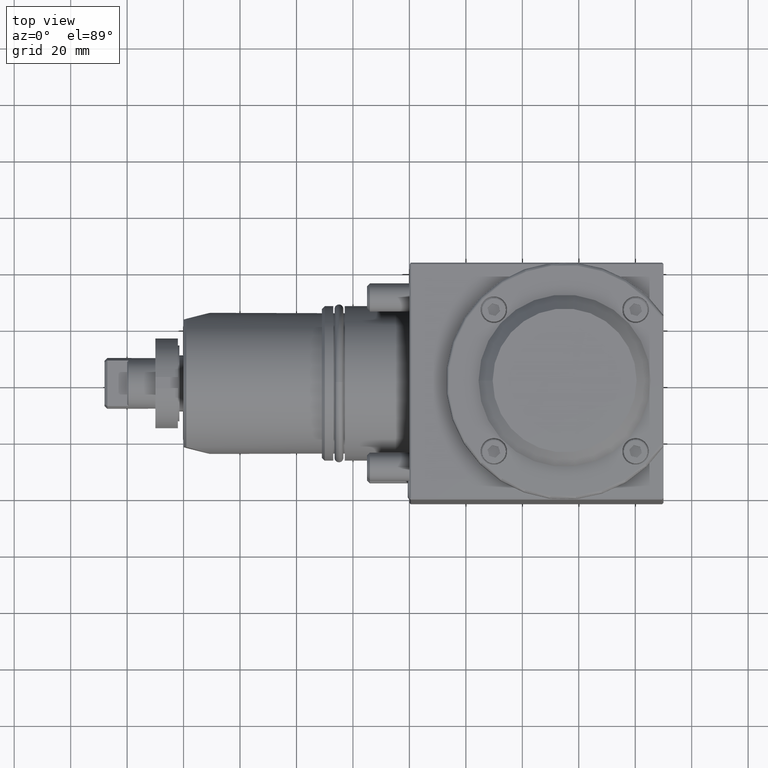
[diagram: clean part render]
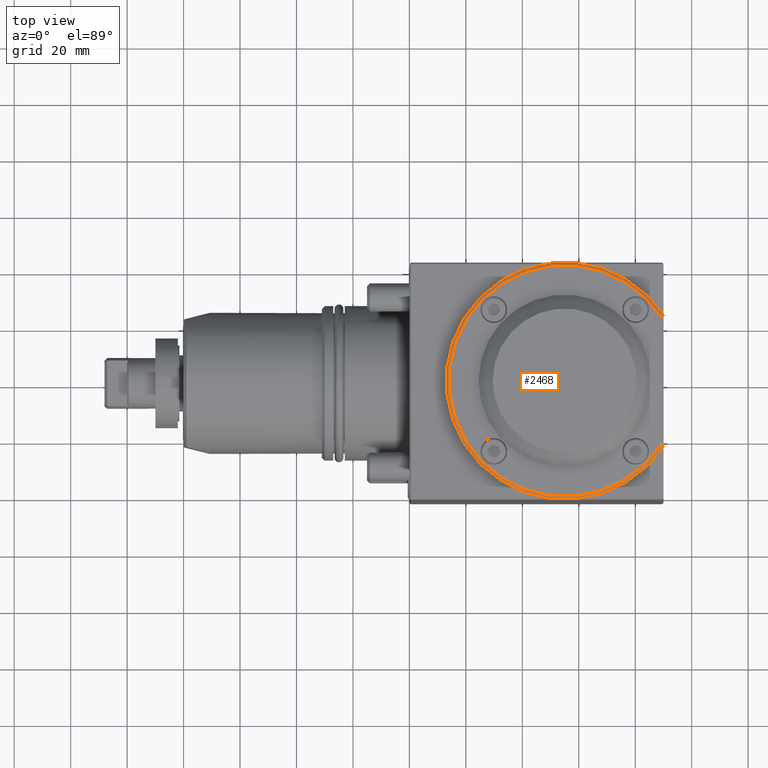
[diagram: same view with one face highlighted and labeled with its STEP entity id]
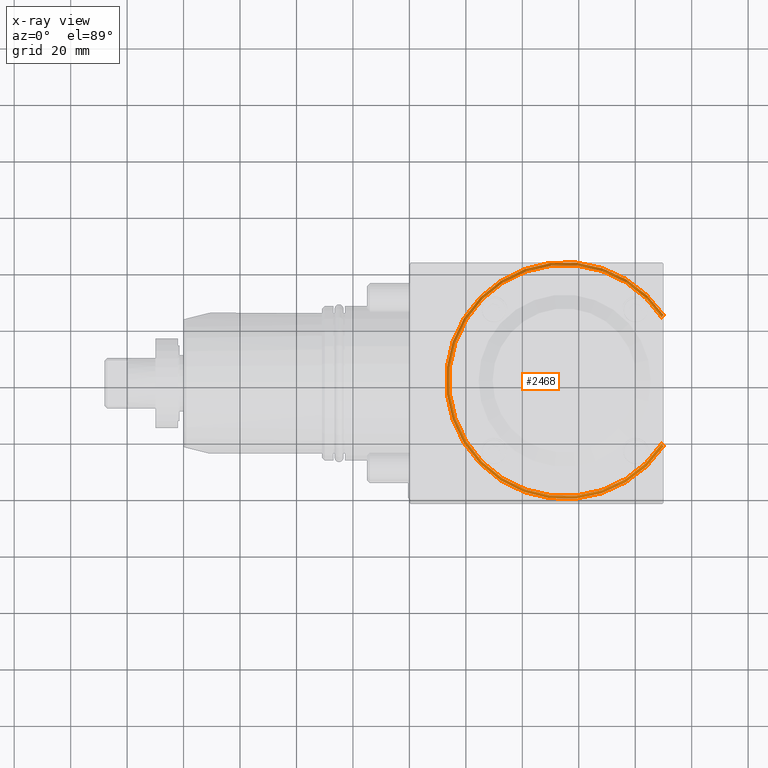
[diagram: x-ray of the same camera — body ghosted, the highlighted face saturated]
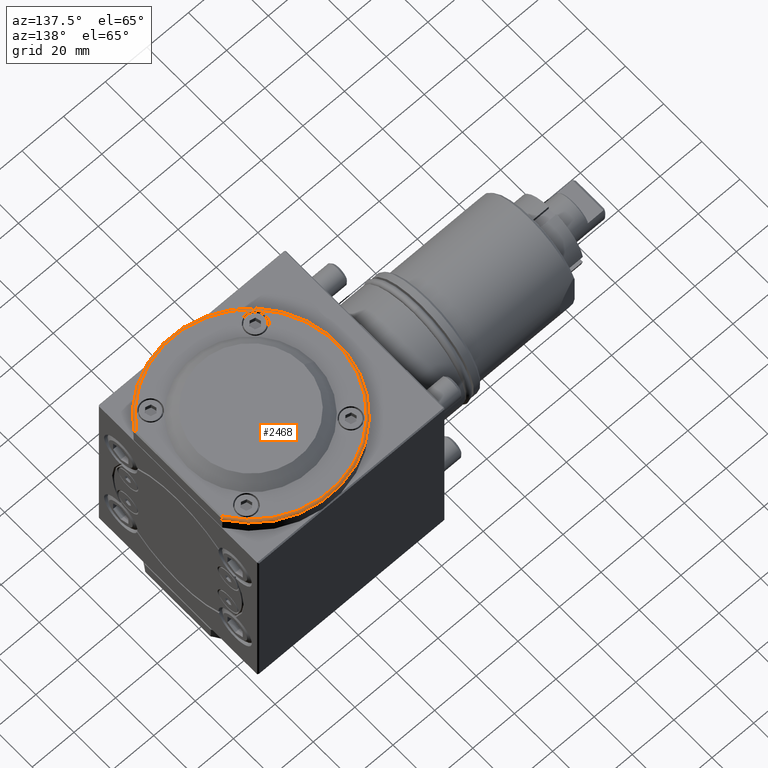
[diagram: same view with one face highlighted and labeled with its STEP entity id]
A machine part, top view. The second image highlights one B-rep face of the part: STEP entity #2468.
The next image is the same camera in x-ray: the body ghosted, the highlighted face saturated — about 0% of this face is hidden behind the body in this view.
A second angle (auxiliary view) of the same face is appended — the face is thin or edge-on in the first view.
In plain terms, the highlighted toroidal blend (fillet) surface has major radius 41 mm and minor (blend) radius 1 mm.
Its self-contained STEP definition (entity closure, byte-faithful):
#39 = CARTESIAN_POINT ( 'NONE',  ( 89.92582510147749986, -23.00807970969875527, 54.57417489853494175 ) ) ;
#42 = AXIS2_PLACEMENT_3D ( 'NONE', #2413, #6904, #5134 ) ;
#244 = DIRECTION ( 'NONE',  ( -1.354066204541056167E-31, 1.000000000000000000, -3.158414431455586393E-15 ) ) ;
#296 = CIRCLE ( 'NONE', #7994, 41.00000000000000000 ) ;
#573 = ORIENTED_EDGE ( 'NONE', *, *, #9673, .F. ) ;
#588 = CARTESIAN_POINT ( 'NONE',  ( 89.63446860594142152, -22.88025528526517149, 54.86553139407102009 ) ) ;
#739 = CARTESIAN_POINT ( 'NONE',  ( 90.00000000001105604, 23.21637353246825697, 54.09607176615617163 ) ) ;
#744 = ORIENTED_EDGE ( 'NONE', *, *, #4330, .F. ) ;
#927 = CARTESIAN_POINT ( 'NONE',  ( 90.00000000001107026, -22.97311653022331157, 54.50000000000135003 ) ) ;
#1112 = TOROIDAL_SURFACE ( 'NONE', #5731, 41.00000000000000000, 1.000000000000000000 ) ;
#1279 = VERTEX_POINT ( 'NONE', #7172 ) ;
#1606 = CARTESIAN_POINT ( 'NONE',  ( 89.92593408171254055, 23.00802834060181823, 54.57406591829973053 ) ) ;
#1689 = CARTESIAN_POINT ( 'NONE',  ( 55.00000000001108447, -1.954009943849197453E-11, 55.00000000000152056 ) ) ;
#1728 = EDGE_CURVE ( 'NONE', #6506, #6698, #10353, .T. ) ;
#1793 = EDGE_CURVE ( 'NONE', #5820, #4994, #7031, .T. ) ;
#1806 = CARTESIAN_POINT ( 'NONE',  ( 90.00000000001107026, -23.21637353252276270, 54.09643016472523414 ) ) ;
#1875 = CARTESIAN_POINT ( 'NONE',  ( 90.00000000001107026, 22.97311653018779154, 54.50000000000118661 ) ) ;
#1955 = CARTESIAN_POINT ( 'NONE',  ( 89.50000000001074341, -22.26190147301716493, 55.00000000000169820 ) ) ;
#2077 = CARTESIAN_POINT ( 'NONE',  ( 89.50000000001108447, 22.15287791685398844, 55.00000000000120082 ) ) ;
#2413 = CARTESIAN_POINT ( 'NONE',  ( 55.00000000001107736, -1.954325785292341748E-11, 54.00000000000152056 ) ) ;
#2468 = ADVANCED_FACE ( 'NONE', ( #4514 ), #1112, .T. ) ;
#2504 = CARTESIAN_POINT ( 'NONE',  ( 89.69522849157125677, -22.95885320991884271, 54.80477150844116352 ) ) ;
#2538 = CARTESIAN_POINT ( 'NONE',  ( 90.00000000001107026, 23.19029655502940557, 54.19060646297955941 ) ) ;
#3449 = CARTESIAN_POINT ( 'NONE',  ( 90.00000000001107026, 23.10289120644959482, 54.35922631148523010 ) ) ;
#3475 = CARTESIAN_POINT ( 'NONE',  ( 89.50497752182256761, 22.37135998983294627, 54.99502247818971767 ) ) ;
#4077 = CARTESIAN_POINT ( 'NONE',  ( 89.50000000001118394, -22.15287791689520702, 55.00000000000135003 ) ) ;
#4330 = EDGE_CURVE ( 'NONE', #6698, #5076, #4583, .T. ) ;
#4380 = CARTESIAN_POINT ( 'NONE',  ( 89.63497207803291644, 22.88104043998939829, 54.86502792197934042 ) ) ;
#4514 = FACE_OUTER_BOUND ( 'NONE', #7861, .T. ) ;
#4583 = B_SPLINE_CURVE_WITH_KNOTS ( 'NONE', 3,
 ( #6226, #10088, #6404, #6462, #1806, #9962 ),
 .UNSPECIFIED., .F., .F.,
 ( 4, 2, 4 ),
 ( 0.009071223604555726447, 0.009355817461904291504, 0.009640411319252858297 ),
 .UNSPECIFIED. ) ;
#4994 = VERTEX_POINT ( 'NONE', #2077 ) ;
#5076 = VERTEX_POINT ( 'NONE', #11326 ) ;
#5134 = DIRECTION ( 'NONE',  ( 0.000000000000000000, 1.000000000000000000, -3.139023432719936835E-15 ) ) ;
#5272 = CARTESIAN_POINT ( 'NONE',  ( 89.69611645803531985, 22.95951859702536879, 54.80388354197690859 ) ) ;
#5494 = CARTESIAN_POINT ( 'NONE',  ( 90.00000000001107026, 23.21637353246828894, 54.00000000000118661 ) ) ;
#5731 = AXIS2_PLACEMENT_3D ( 'NONE', #7423, #6700, #244 ) ;
#5820 = VERTEX_POINT ( 'NONE', #9365 ) ;
#6202 = CARTESIAN_POINT ( 'NONE',  ( 89.84574538325627202, -23.02228783299855053, 54.65425461675616958 ) ) ;
#6226 = CARTESIAN_POINT ( 'NONE',  ( 90.00000000001107026, -22.97311653022331157, 54.50000000000135003 ) ) ;
#6404 = CARTESIAN_POINT ( 'NONE',  ( 90.00000000001108447, -23.10295105596832954, 54.35916792446964507 ) ) ;
#6462 = CARTESIAN_POINT ( 'NONE',  ( 90.00000000001107026, -23.19041425194970429, 54.19032221679883321 ) ) ;
#6506 = VERTEX_POINT ( 'NONE', #4077 ) ;
#6698 = VERTEX_POINT ( 'NONE', #10350 ) ;
#6700 = DIRECTION ( 'NONE',  ( 6.982962677686266711E-15, 3.158414431455586393E-15, 1.000000000000000000 ) ) ;
#6904 = DIRECTION ( 'NONE',  ( -6.982962677686266711E-15, -3.158414431455586393E-15, -1.000000000000000000 ) ) ;
#6905 = EDGE_CURVE ( 'NONE', #4994, #6506, #296, .T. ) ;
#7031 = B_SPLINE_CURVE_WITH_KNOTS ( 'NONE', 3,
 ( #9875, #1606, #10858, #5272, #4380, #8066, #11764, #3475, #7170, #7742 ),
 .UNSPECIFIED., .F., .F.,
 ( 4, 2, 2, 2, 4 ),
 ( 2.961087522431766957E-07, 0.0003292567678517023533, 0.0006582174269511616030, 0.0009871780860506208528, 0.001316138745150079994 ),
 .UNSPECIFIED. ) ;
#7170 = CARTESIAN_POINT ( 'NONE',  ( 89.50000000001098499, 22.26236925880375139, 55.00000000000129319 ) ) ;
#7172 = CARTESIAN_POINT ( 'NONE',  ( 90.00000000001107026, 23.21637353246828894, 54.00000000000118661 ) ) ;
#7423 = CARTESIAN_POINT ( 'NONE',  ( 55.00000000001107736, -1.954325785292341748E-11, 54.00000000000152056 ) ) ;
#7453 = CARTESIAN_POINT ( 'NONE',  ( 89.50000000001118394, -22.15287791689520702, 55.00000000000135003 ) ) ;
#7596 = ORIENTED_EDGE ( 'NONE', *, *, #6905, .F. ) ;
#7742 = CARTESIAN_POINT ( 'NONE',  ( 89.50000000001108447, 22.15287791685398844, 55.00000000000120082 ) ) ;
#7836 = ORIENTED_EDGE ( 'NONE', *, *, #9566, .F. ) ;
#7861 = EDGE_LOOP ( 'NONE', ( #573, #7836, #744, #9687, #7596, #9639 ) ) ;
#7994 = AXIS2_PLACEMENT_3D ( 'NONE', #1689, #10767, #11856 ) ;
#8066 = CARTESIAN_POINT ( 'NONE',  ( 89.55489102383340594, 22.69278395544456117, 54.94510897617885803 ) ) ;
#8441 = B_SPLINE_CURVE_WITH_KNOTS ( 'NONE', 3,
 ( #5494, #739, #2538, #3449, #11075, #1875 ),
 .UNSPECIFIED., .F., .F.,
 ( 4, 2, 4 ),
 ( 0.004741518081716283167, 0.005026217113866872019, 0.005310916146017461738 ),
 .UNSPECIFIED. ) ;
#8856 = CARTESIAN_POINT ( 'NONE',  ( 89.55455219614775331, -22.69158479451960275, 54.94544780386467409 ) ) ;
#8915 = CARTESIAN_POINT ( 'NONE',  ( 89.50490416723505405, -22.37023517064629274, 54.99509583277737335 ) ) ;
#9198 = CARTESIAN_POINT ( 'NONE',  ( 89.53221487014523916, -22.58444054595803863, 54.96778512986716692 ) ) ;
#9365 = CARTESIAN_POINT ( 'NONE',  ( 90.00000000001107026, 22.97311653018779154, 54.50000000000118661 ) ) ;
#9566 = EDGE_CURVE ( 'NONE', #5076, #1279, #9855, .T. ) ;
#9639 = ORIENTED_EDGE ( 'NONE', *, *, #1793, .F. ) ;
#9673 = EDGE_CURVE ( 'NONE', #1279, #5820, #8441, .T. ) ;
#9687 = ORIENTED_EDGE ( 'NONE', *, *, #1728, .F. ) ;
#9855 = CIRCLE ( 'NONE', #42, 42.00000000000000000 ) ;
#9875 = CARTESIAN_POINT ( 'NONE',  ( 90.00000000001107026, 22.97311653018779154, 54.50000000000118661 ) ) ;
#9962 = CARTESIAN_POINT ( 'NONE',  ( 90.00000000001107026, -23.21637353250741498, 54.00000000000135003 ) ) ;
#10088 = CARTESIAN_POINT ( 'NONE',  ( 90.00000000001108447, -23.04186749119211441, 54.43465722366799042 ) ) ;
#10350 = CARTESIAN_POINT ( 'NONE',  ( 90.00000000001107026, -22.97311653022331157, 54.50000000000135003 ) ) ;
#10353 = B_SPLINE_CURVE_WITH_KNOTS ( 'NONE', 3,
 ( #7453, #1955, #8915, #9198, #8856, #588, #2504, #6202, #39, #927 ),
 .UNSPECIFIED., .F., .F.,
 ( 4, 2, 2, 2, 4 ),
 ( 0.002617874530021777404, 0.002942192694943408099, 0.003266510859865039227, 0.003590829024786670355, 0.003915147189708301050 ),
 .UNSPECIFIED. ) ;
#10767 = DIRECTION ( 'NONE',  ( 6.982962677686266711E-15, 3.158414431455586393E-15, 1.000000000000000000 ) ) ;
#10858 = CARTESIAN_POINT ( 'NONE',  ( 89.84623462909851810, 23.02220018045931127, 54.65376537091376008 ) ) ;
#11075 = CARTESIAN_POINT ( 'NONE',  ( 90.00000000001108447, 23.04174127671854322, 54.43477718128663412 ) ) ;
#11326 = CARTESIAN_POINT ( 'NONE',  ( 90.00000000001107026, -23.21637353250741498, 54.00000000000135003 ) ) ;
#11764 = CARTESIAN_POINT ( 'NONE',  ( 89.53245111870506889, 22.58573778940792920, 54.96754888130720218 ) ) ;
#11856 = DIRECTION ( 'NONE',  ( 0.000000000000000000, 1.000000000000000000, -3.215584979859447441E-15 ) ) ;